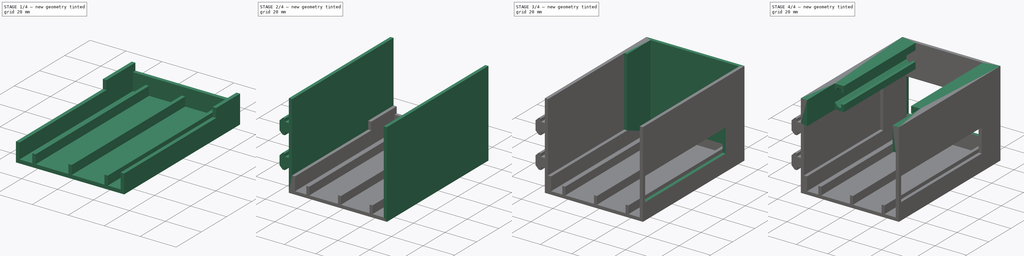
[diagram: build sequence overview — one tinted view per stage of 4, left to right]
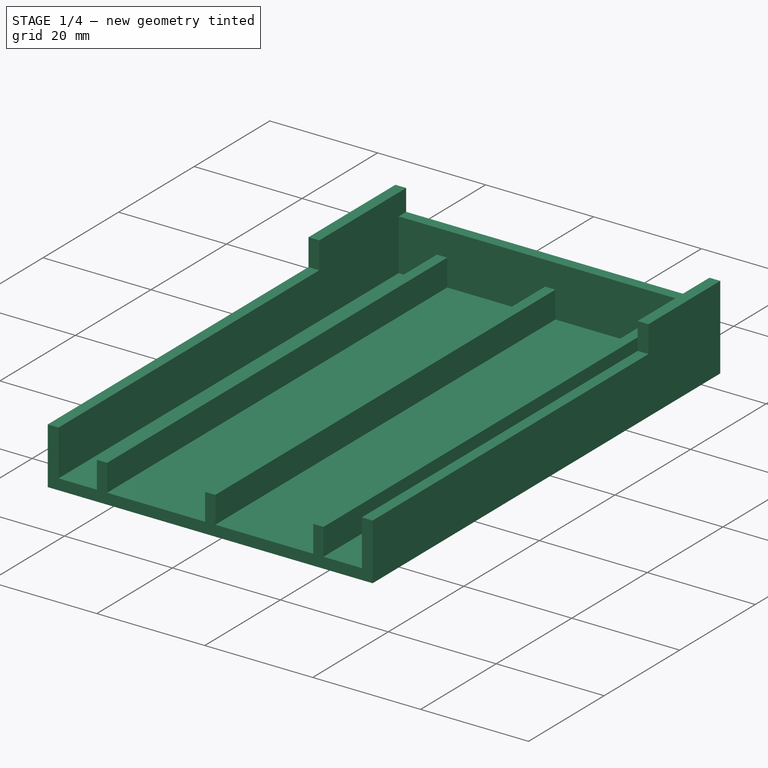
[diagram: stage 1 of 4 — iso view after this stage's code; geometry added in this stage tinted green]
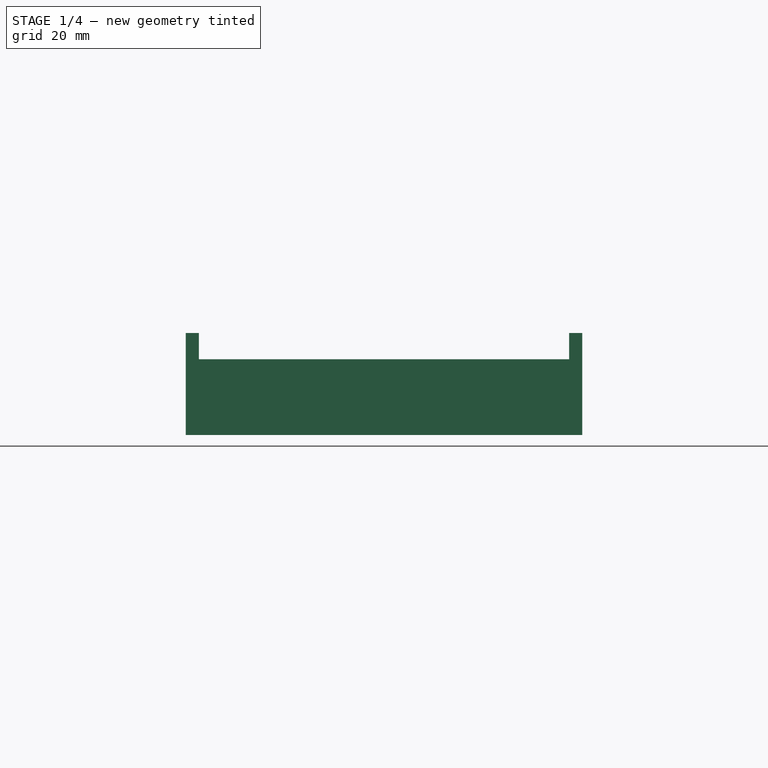
[diagram: stage 1 of 4 — front view after this stage's code; geometry added in this stage tinted green]
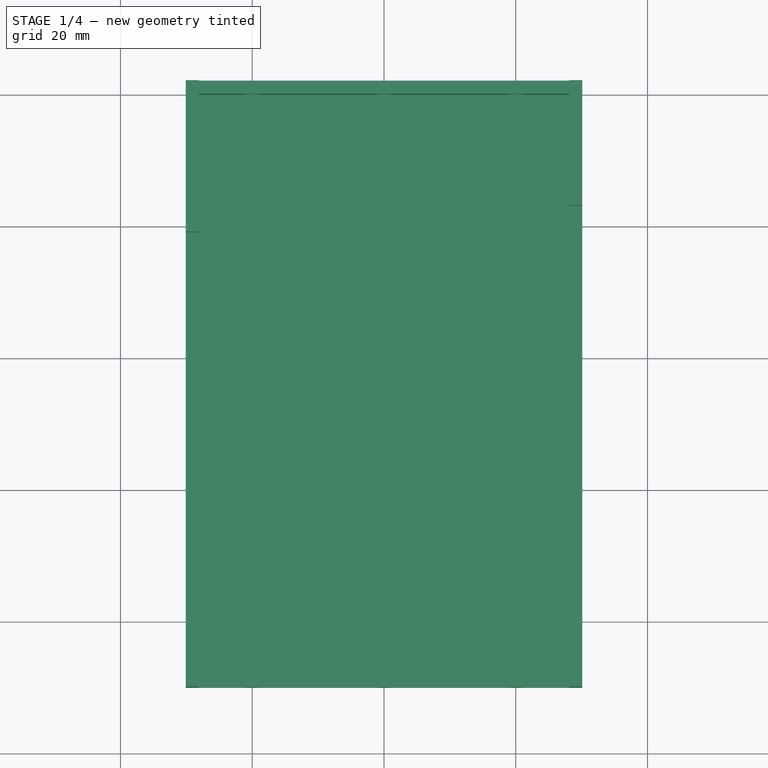
[diagram: stage 1 of 4 — top view after this stage's code; geometry added in this stage tinted green]
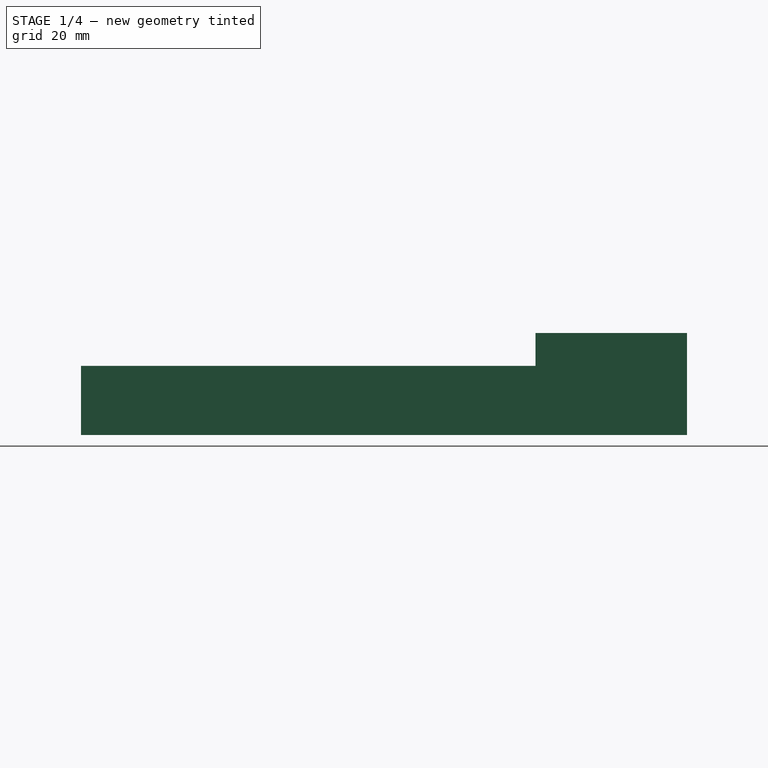
[diagram: stage 1 of 4 — right view after this stage's code; geometry added in this stage tinted green]
FCSTD DOCUMENT  (FreeCAD 1.0R39109 (Git))
Label: 01 Base plate v2
License: All rights reserved
LicenseURL: https://en.wikipedia.org/wiki/All_rights_reserved
objects: Sketcher::SketchObject×14, PartDesign::Pad×11, PartDesign::Pocket×3, PartDesign::Body×1
note: 71 computed .brp shape members not serialized (recipe doc carries the construction recipe); baked Part::Feature solids carry a one-line shape summary decoded from their .brp

FEATURE [Sketcher::SketchObject] Sketch
  ArcFitTolerance = 1e-06
  AttachmentSupport = -> [XZ_Plane]
  FullyConstrained = true
  MakeInternals = false
  MapMode = 5
  Placement = pos=(0,0,0) rot=(1,0,0;1.5708rad)
  sketch-geometry (20):
    g0: LineSegment StartX=-30.1 StartY=0 StartZ=0 EndX=30.1 EndY=0 EndZ=0
    g1: LineSegment StartX=-30.1 StartY=0 StartZ=0 EndX=-30.1 EndY=15.5 EndZ=0
    g2: LineSegment StartX=30.1 StartY=0 StartZ=0 EndX=30.1 EndY=15.5 EndZ=0
    g3: LineSegment StartX=-30.1 StartY=15.5 StartZ=0 EndX=-28.1 EndY=15.5 EndZ=0
    g4: LineSegment StartX=-28.1 StartY=15.5 StartZ=0 EndX=-28.1 EndY=2 EndZ=0
    g5: LineSegment StartX=30.1 StartY=15.5 StartZ=0 EndX=28.1 EndY=15.5 EndZ=0
    g6: LineSegment StartX=28.1 StartY=15.5 StartZ=0 EndX=28.1 EndY=2 EndZ=0
    g7: LineSegment StartX=-28.1 StartY=2 StartZ=0 EndX=28.1 EndY=2 EndZ=0
    g8: LineSegment StartX=-0.95 StartY=2 StartZ=0 EndX=-0.95 EndY=7 EndZ=0
    g9: LineSegment StartX=0.95 StartY=7 StartZ=0 EndX=0.95 EndY=2 EndZ=0
    g10: LineSegment StartX=-0.95 StartY=7 StartZ=0 EndX=0.95 EndY=7 EndZ=0
    g11: LineSegment StartX=-0.95 StartY=2 StartZ=0 EndX=0.95 EndY=2 EndZ=0
    g12: LineSegment StartX=-21 StartY=2 StartZ=0 EndX=-21 EndY=7 EndZ=0
    g13: LineSegment StartX=-21 StartY=7 StartZ=0 EndX=-19.1 EndY=7 EndZ=0
    g14: LineSegment StartX=-19.1 StartY=7 StartZ=0 EndX=-19.1 EndY=2 EndZ=0
    g15: LineSegment StartX=-19.1 StartY=2 StartZ=0 EndX=-21 EndY=2 EndZ=0
    g16: LineSegment StartX=21 StartY=2 StartZ=0 EndX=21 EndY=7 EndZ=0
    g17: LineSegment StartX=21 StartY=7 StartZ=0 EndX=19.1 EndY=7 EndZ=0
    g18: LineSegment StartX=19.1 StartY=7 StartZ=0 EndX=19.1 EndY=2 EndZ=0
    g19: LineSegment StartX=19.1 StartY=2 StartZ=0 EndX=21 EndY=2 EndZ=0
  constraints (60):
    c: Distance(g0) = 60.2
    c: Horizontal(g0)
    c: DistanceY(g-1,g0) = 0
    c: DistanceX(g0,g-1) = 30.1
    c: Distance(g1) = 15.5
    c: Coincident(g1,g0)
    c: Vertical(g1)
    c: Distance(g2) = 15.5
    c: Coincident(g2,g0)
    c: Vertical(g2)
    c: Distance(g3) = 2
    c: Coincident(g3,g1)
    c: Horizontal(g3)
    c: Distance(g4) = 13.5
    c: Coincident(g4,g3)
    c: Vertical(g4)
    c: Distance(g5) = 2
    c: Coincident(g5,g2)
    c: Horizontal(g5)
    c: Distance(g6) = 13.5
    c: Coincident(g6,g5)
    c: Vertical(g6)
    c: Coincident(g7,g4)
    c: Coincident(g7,g6)
    c: Distance(g8) = 5
    c: Vertical(g8)
    c: Distance(g9) = 5
    c: Vertical(g9)
    c: DistanceX(g8,g9) = 1.9
    c: Coincident(g10,g8)
    c: Coincident(g10,g9)
    c: Horizontal(g10)
    c: DistanceY(g-1,g8) = 2
    c: DistanceX(g8,g-1) = 0.95
    c: Coincident(g11,g8)
    c: Coincident(g11,g9)
    c: Distance(g12) = 5
    c: Vertical(g12)
    c: PointOnObject(g12,g7)
    c: DistanceX(g4,g12) = 7.1
    c: Distance(g13) = 1.9
    c: Coincident(g13,g12)
    c: Horizontal(g13)
    c: Coincident(g14,g13)
    c: PointOnObject(g14,g7)
    c: Vertical(g14)
    c: Coincident(g15,g14)
    c: Coincident(g15,g12)
    c: Distance(g16) = 5
    c: Vertical(g16)
    c: PointOnObject(g16,g7)
    c: DistanceX(g16,g6) = 7.1
    c: Distance(g17) = 1.9
    c: Coincident(g17,g16)
    c: Horizontal(g17)
    c: Coincident(g18,g17)
    c: PointOnObject(g18,g7)
    c: Vertical(g18)
    c: Coincident(g19,g18)
    c: Coincident(g19,g16)
FEATURE [PartDesign::Pad] Pad
  Direction = (0,-1,2e-16)
  Length = 90
  Length2 = 10
  Placement = pos=(0,0,0) rot=(1,0,0;1.5708rad)
  Profile = -> Sketch
  ReferenceAxis = -> Sketch [N_Axis]
  Refine = true
  Suppressed = false
  Type = 0
FEATURE [Sketcher::SketchObject] Sketch001
  ArcFitTolerance = 1e-06
  AttachmentSupport = -> [Pad]
  FullyConstrained = true
  MakeInternals = false
  MapMode = 5
  Placement = pos=(0,6.8e-15,15.5) rot=(0,0,1;3.14159rad)
  sketch-geometry (8):
    g0: LineSegment StartX=28.1 StartY=21 StartZ=0 EndX=30.1 EndY=21 EndZ=0
    g1: LineSegment StartX=30.1 StartY=21 StartZ=0 EndX=30.1 EndY=90 EndZ=0
    g2: LineSegment StartX=30.1 StartY=90 StartZ=0 EndX=28.1 EndY=90 EndZ=0
    g3: LineSegment StartX=28.1 StartY=90 StartZ=0 EndX=28.1 EndY=21 EndZ=0
    g4: LineSegment StartX=-30.1 StartY=17 StartZ=0 EndX=-28.1 EndY=17 EndZ=0
    g5: LineSegment StartX=-28.1 StartY=17 StartZ=0 EndX=-28.1 EndY=90 EndZ=0
    g6: LineSegment StartX=-28.1 StartY=90 StartZ=0 EndX=-30.1 EndY=90 EndZ=0
    g7: LineSegment StartX=-30.1 StartY=90 StartZ=0 EndX=-30.1 EndY=17 EndZ=0
  constraints (24):
    c: Coincident(g0,g1)
    c: Coincident(g1,g2)
    c: Coincident(g2,g3)
    c: Coincident(g3,g0)
    c: Horizontal(g0)
    c: Horizontal(g2)
    c: Vertical(g1)
    c: Vertical(g3)
    c: Distance(g1,g3) = 2
    c: Distance(g0,g2) = 69
    c: DistanceX(g-1,g0) = 28.1
    c: DistanceY(g-1,g0) = 21
    c: Coincident(g4,g5)
    c: Coincident(g5,g6)
    c: Coincident(g6,g7)
    c: Coincident(g7,g4)
    c: Horizontal(g4)
    c: Horizontal(g6)
    c: Vertical(g5)
    c: Vertical(g7)
    c: Distance(g5,g7) = 2
    c: Distance(g4,g6) = 73
    c: DistanceY(g-1,g4) = 17
    c: DistanceX(g4,g-1) = 28.1
FEATURE [PartDesign::Pocket] Pocket
  BaseFeature = -> Pad
  Direction = (0,0,-1)
  Length = 5
  Length2 = 5
  Placement = pos=(0,0,0) rot=(1,0,0;1.5708rad)
  Profile = -> Sketch001
  ReferenceAxis = -> Sketch001 [N_Axis]
  Refine = true
  Suppressed = false
  Type = 0
FEATURE [Sketcher::SketchObject] Sketch002
  ArcFitTolerance = 1e-06
  AttachmentSupport = -> [Pocket]
  FullyConstrained = true
  MakeInternals = false
  MapMode = 5
  Placement = pos=(0,0,0) rot=(-1,0,0;1.5708rad)
  sketch-geometry (4):
    g0: LineSegment StartX=-30.1 StartY=0 StartZ=0 EndX=-30.1 EndY=-11.5 EndZ=0
    g1: LineSegment StartX=-30.1 StartY=-11.5 StartZ=0 EndX=30.1 EndY=-11.5 EndZ=0
    g2: LineSegment StartX=30.1 StartY=-11.5 StartZ=0 EndX=30.1 EndY=0 EndZ=0
    g3: LineSegment StartX=30.1 StartY=0 StartZ=0 EndX=-30.1 EndY=0 EndZ=0
  constraints (12):
    c: Coincident(g0,g1)
    c: Coincident(g1,g2)
    c: Coincident(g2,g3)
    c: Coincident(g3,g0)
    c: Vertical(g0)
    c: Vertical(g2)
    c: Horizontal(g1)
    c: Horizontal(g3)
    c: Distance(g0,g2) = 60.2
    c: Distance(g1,g3) = 11.5
    c: DistanceX(g0,g-1) = 30.1
    c: DistanceY(g0,g-1) = 0
FEATURE [PartDesign::Pad] Pad001
  BaseFeature = -> Pocket
  Direction = (0,1,2e-16)
  Length = 2
  Length2 = 10
  Placement = pos=(0,0,0) rot=(1,0,0;1.5708rad)
  Profile = -> Sketch002
  ReferenceAxis = -> Sketch002 [N_Axis]
  Refine = true
  Suppressed = false
  Type = 0
FEATURE [Sketcher::SketchObject] Sketch004
  ArcFitTolerance = 1e-06
  FullyConstrained = true
  MakeInternals = false
  MapMode = 5
  Placement = pos=(0,0,11.5) rot=(0,0,1;3.14159rad)
  sketch-geometry (8):
    g0: LineSegment StartX=-30.1 StartY=-2 StartZ=0 EndX=-28.1 EndY=-2 EndZ=0
    g1: LineSegment StartX=-28.1 StartY=-2 StartZ=0 EndX=-28.1 EndY=0 EndZ=0
    g2: LineSegment StartX=-28.1 StartY=0 StartZ=0 EndX=-30.1 EndY=0 EndZ=0
    g3: LineSegment StartX=-30.1 StartY=0 StartZ=0 EndX=-30.1 EndY=-2 EndZ=0
    g4: LineSegment StartX=28.1 StartY=0 StartZ=0 EndX=28.1 EndY=-2 EndZ=0
    g5: LineSegment StartX=28.1 StartY=-2 StartZ=0 EndX=30.1 EndY=-2 EndZ=0
    g6: LineSegment StartX=30.1 StartY=-2 StartZ=0 EndX=30.1 EndY=0 EndZ=0
    g7: LineSegment StartX=30.1 StartY=0 StartZ=0 EndX=28.1 EndY=0 EndZ=0
  constraints (24):
    c: Coincident(g0,g1)
    c: Coincident(g1,g2)
    c: Coincident(g2,g3)
    c: Coincident(g3,g0)
    c: Horizontal(g0)
    c: Horizontal(g2)
    c: Vertical(g1)
    c: Vertical(g3)
    c: Distance(g1,g3) = 2
    c: Distance(g0,g2) = 2
    c: DistanceX(g0,g-1) = 30.1
    c: DistanceY(g2,g-1) = 0
    c: Coincident(g4,g5)
    c: Coincident(g5,g6)
    c: Coincident(g6,g7)
    c: Coincident(g7,g4)
    c: Vertical(g4)
    c: Vertical(g6)
    c: Horizontal(g5)
    c: Horizontal(g7)
    c: Distance(g4,g6) = 2
    c: Distance(g5,g7) = 2
    c: DistanceX(g-1,g5) = 30.1
    c: DistanceY(g6,g-1) = 0
FEATURE [PartDesign::Pad] Pad002
  BaseFeature = -> Pad001
  Direction = (0,0,1)
  Length = 4
  Length2 = 10
  Placement = pos=(0,0,0) rot=(1,0,0;1.5708rad)
  Profile = -> Sketch004
  ReferenceAxis = -> Sketch004 [N_Axis]
  Refine = true
  Suppressed = false
  Type = 0
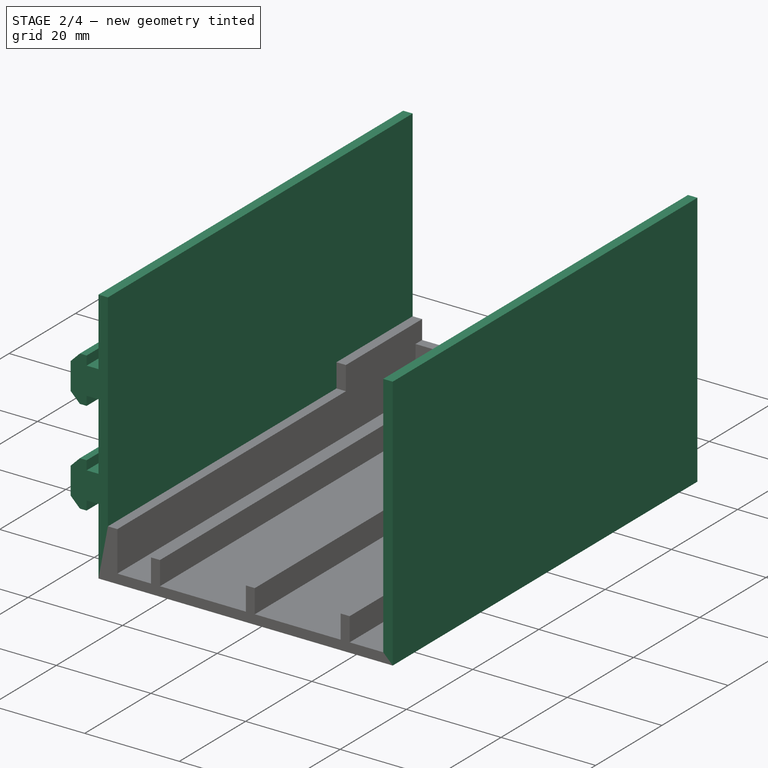
[diagram: stage 2 of 4 — iso view after this stage's code; geometry added in this stage tinted green]
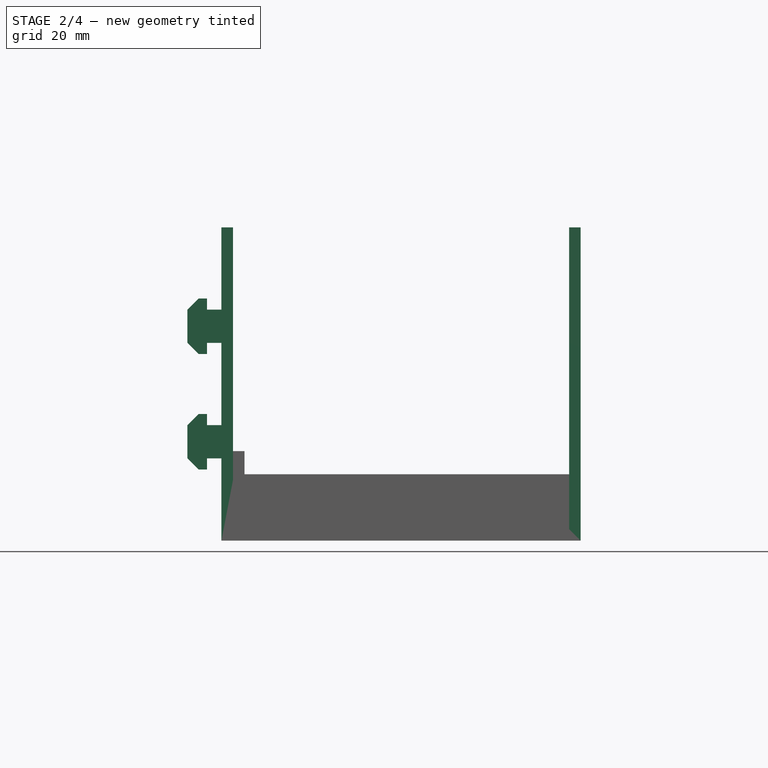
[diagram: stage 2 of 4 — front view after this stage's code; geometry added in this stage tinted green]
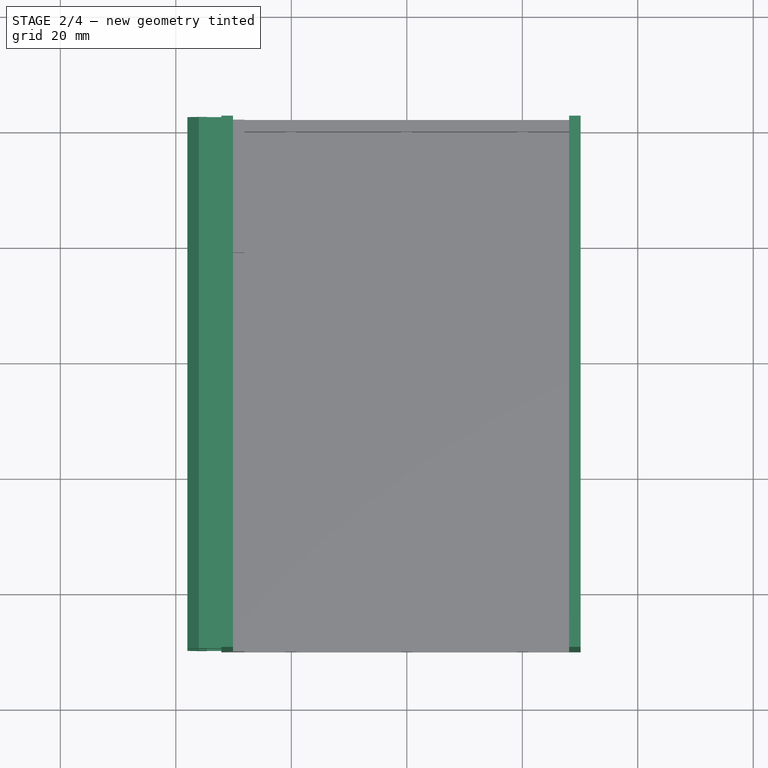
[diagram: stage 2 of 4 — top view after this stage's code; geometry added in this stage tinted green]
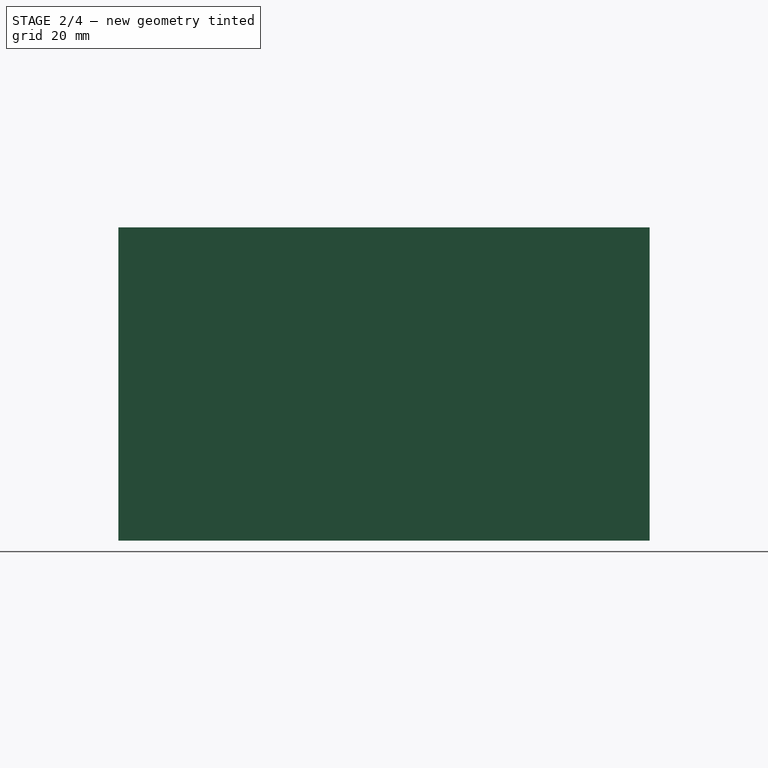
[diagram: stage 2 of 4 — right view after this stage's code; geometry added in this stage tinted green]
FEATURE [Sketcher::SketchObject] Sketch005
  ArcFitTolerance = 1e-06
  AttachmentSupport = -> [Pad002]
  FullyConstrained = true
  MakeInternals = false
  MapMode = 5
  Placement = pos=(0,2,-5e-16) rot=(-1,0,0;1.5708rad)
  sketch-geometry (24):
    g0: LineSegment StartX=-30.1 StartY=-54.24 StartZ=0 EndX=-30.1 EndY=0 EndZ=0
    g1: LineSegment StartX=-30.1 StartY=0 StartZ=0 EndX=-32.1 EndY=0 EndZ=0
    g2: LineSegment StartX=-32.1 StartY=0 StartZ=0 EndX=-32.1 EndY=-14.24 EndZ=0
    g3: LineSegment StartX=-32.1 StartY=-14.24 StartZ=0 EndX=-34.6 EndY=-14.24 EndZ=0
    g4: LineSegment StartX=-34.6 StartY=-14.24 StartZ=0 EndX=-34.6 EndY=-12.31 EndZ=0
    g5: LineSegment StartX=-34.6 StartY=-12.31 StartZ=0 EndX=-36.03 EndY=-12.31 EndZ=0
    g6: LineSegment StartX=-36.03 StartY=-12.31 StartZ=0 EndX=-37.9958 EndY=-14.2758 EndZ=0
    g7: LineSegment StartX=-37.9958 StartY=-14.2758 StartZ=0 EndX=-37.9958 EndY=-19.9658 EndZ=0
    g8: LineSegment StartX=-37.9958 StartY=-19.9658 StartZ=0 EndX=-36.03 EndY=-21.9315 EndZ=0
    g9: LineSegment StartX=-36.03 StartY=-21.9315 StartZ=0 EndX=-34.6 EndY=-21.9315 EndZ=0
    g10: LineSegment StartX=-34.6 StartY=-21.9315 StartZ=0 EndX=-34.6 EndY=-20 EndZ=0
    g11: LineSegment StartX=-34.6 StartY=-20 StartZ=0 EndX=-32.1 EndY=-20 EndZ=0
    g12: LineSegment StartX=-32.1 StartY=-20 StartZ=0 EndX=-32.1 EndY=-34.24 EndZ=0
    g13: LineSegment StartX=-32.1 StartY=-34.24 StartZ=0 EndX=-34.6 EndY=-34.24 EndZ=0
    g14: LineSegment StartX=-34.6 StartY=-34.24 StartZ=0 EndX=-34.6 EndY=-32.31 EndZ=0
    g15: LineSegment StartX=-34.6 StartY=-32.31 StartZ=0 EndX=-36.03 EndY=-32.31 EndZ=0
    g16: LineSegment StartX=-36.03 StartY=-32.31 StartZ=0 EndX=-37.9958 EndY=-34.2758 EndZ=0
    g17: LineSegment StartX=-37.9958 StartY=-34.2758 StartZ=0 EndX=-37.9958 EndY=-39.9658 EndZ=0
    g18: LineSegment StartX=-37.9958 StartY=-39.9658 StartZ=0 EndX=-36.03 EndY=-41.9315 EndZ=0
    g19: LineSegment StartX=-36.03 StartY=-41.9315 StartZ=0 EndX=-34.6 EndY=-41.9315 EndZ=0
    g20: LineSegment StartX=-34.6 StartY=-41.9315 StartZ=0 EndX=-34.6 EndY=-40.0015 EndZ=0
    g21: LineSegment StartX=-34.6 StartY=-40.0015 StartZ=0 EndX=-32.1 EndY=-40.0015 EndZ=0
    g22: LineSegment StartX=-32.1 StartY=-40.0015 StartZ=0 EndX=-32.1 EndY=-54.24 EndZ=0
    g23: LineSegment StartX=-32.1 StartY=-54.24 StartZ=0 EndX=-30.1 EndY=-54.24 EndZ=0
  constraints (72):
    c: Vertical(g0)
    c: Coincident(g0,g1)
    c: Horizontal(g1)
    c: Coincident(g1,g2)
    c: Vertical(g2)
    c: Coincident(g2,g3)
    c: Horizontal(g3)
    c: Coincident(g3,g4)
    c: Vertical(g4)
    c: Coincident(g4,g5)
    c: Horizontal(g5)
    c: Coincident(g5,g6)
    c: Coincident(g6,g7)
    c: Vertical(g7)
    c: Coincident(g7,g8)
    c: Coincident(g8,g9)
    c: Coincident(g9,g10)
    c: Vertical(g10)
    c: Coincident(g10,g11)
    c: Coincident(g11,g12)
    c: Vertical(g12)
    c: Coincident(g12,g13)
    c: Horizontal(g13)
    c: Coincident(g13,g14)
    c: Coincident(g14,g15)
    c: Horizontal(g15)
    c: Coincident(g15,g16)
    c: Coincident(g16,g17)
    c: Coincident(g17,g18)
    c: Coincident(g18,g19)
    c: Coincident(g19,g20)
    c: Vertical(g20)
    c: Coincident(g20,g21)
    c: Coincident(g21,g22)
    c: Vertical(g22)
    c: Coincident(g22,g23)
    c: Coincident(g23,g0)
    c: Horizontal(g23)
    c: Vertical(g17)
    c: Horizontal(g21)
    c: Horizontal(g19)
    c: Horizontal(g9)
    c: Horizontal(g11)
    c: Distance(g0) = 54.24
    c: Distance(g1) = 2
    c: Distance(g2) = 14.24
    c: Distance(g3) = 2.5
    c: Distance(g4) = 1.93
    c: Distance(g5) = 1.43
    c: Distance(g6) = 2.78
    c: Distance(g7) = 5.69
    c: Distance(g8) = 2.78
    c: Distance(g9) = 1.43
    c: Distance(g11) = 2.5
    c: Angle(g6,g-1) = 2.35619
    c: DistanceY(g11,g2) = 5.76
    c: Distance(g12) = 14.24
    c: Distance(g13) = 2.5
    c: Vertical(g14)
    c: Distance(g14) = 1.93
    c: Distance(g15) = 1.43
    c: Distance(g16) = 2.78
    c: Distance(g17) = 5.69
    c: Distance(g18) = 2.78
    c: Distance(g19) = 1.43
    c: Distance(g20) = 1.93
    c: Distance(g21) = 2.5
    c: Distance(g23) = 2
    c: Angle(g16,g-1) = 2.35619
    c: Angle(g8,g7) = 2.35619
    c: DistanceY(g0,g-1) = 0
    c: DistanceX(g0,g-1) = 30.1
FEATURE [PartDesign::Pad] Pad003
  BaseFeature = -> Pad002
  Direction = (0,1,2e-16)
  Length = 92
  Length2 = 10
  Placement = pos=(0,0,0) rot=(1,0,0;1.5708rad)
  Profile = -> Sketch005
  ReferenceAxis = -> Sketch005 [N_Axis]
  Refine = true
  Reversed = true
  Suppressed = false
  Type = 0
FEATURE [Sketcher::SketchObject] Sketch006
  ArcFitTolerance = 1e-06
  AttachmentSupport = -> [Pad003]
  FullyConstrained = true
  MakeInternals = false
  MapMode = 5
  Placement = pos=(0,0,10.5) rot=(0,0,1;3.14159rad)
  sketch-geometry (4):
    g0: LineSegment StartX=-30.1 StartY=90 StartZ=0 EndX=-30.1 EndY=17 EndZ=0
    g1: LineSegment StartX=-30.1 StartY=17 StartZ=0 EndX=-28.1 EndY=17 EndZ=0
    g2: LineSegment StartX=-28.1 StartY=17 StartZ=0 EndX=-28.1 EndY=90 EndZ=0
    g3: LineSegment StartX=-28.1 StartY=90 StartZ=0 EndX=-30.1 EndY=90 EndZ=0
  constraints (12):
    c: Coincident(g0,g1)
    c: Coincident(g1,g2)
    c: Coincident(g2,g3)
    c: Coincident(g3,g0)
    c: Vertical(g0)
    c: Vertical(g2)
    c: Horizontal(g1)
    c: Horizontal(g3)
    c: Distance(g0,g2) = 2
    c: Distance(g1,g3) = 73
    c: DistanceY(g-1,g1) = 17
    c: DistanceX(g1,g-1) = 28.1
FEATURE [PartDesign::Pad] Pad004
  BaseFeature = -> Pad003
  Direction = (0,0,1)
  Length = 5
  Length2 = 10
  Placement = pos=(0,0,0) rot=(1,0,0;1.5708rad)
  Profile = -> Sketch006
  ReferenceAxis = -> Sketch006 [N_Axis]
  Refine = true
  Suppressed = false
  Type = 0
FEATURE [Sketcher::SketchObject] Sketch007
  ArcFitTolerance = 1e-06
  AttachmentSupport = -> [Pad004]
  FullyConstrained = true
  MakeInternals = false
  MapMode = 5
  Placement = pos=(-4.2e-15,0,15.5) rot=(0,0,1;3.14159rad)
  sketch-geometry (4):
    g0: LineSegment StartX=-30.1 StartY=-2 StartZ=0 EndX=-28.1 EndY=-2 EndZ=0
    g1: LineSegment StartX=-28.1 StartY=-2 StartZ=0 EndX=-28.1 EndY=90 EndZ=0
    g2: LineSegment StartX=-28.1 StartY=90 StartZ=0 EndX=-30.1 EndY=90 EndZ=0
    g3: LineSegment StartX=-30.1 StartY=90 StartZ=0 EndX=-30.1 EndY=-2 EndZ=0
  constraints (12):
    c: Coincident(g0,g1)
    c: Coincident(g1,g2)
    c: Coincident(g2,g3)
    c: Coincident(g3,g0)
    c: Horizontal(g0)
    c: Horizontal(g2)
    c: Vertical(g1)
    c: Vertical(g3)
    c: Distance(g1,g3) = 2
    c: Distance(g0,g2) = 92
    c: DistanceY(g0,g-1) = 2
    c: DistanceX(g0,g-1) = 28.1
FEATURE [PartDesign::Pad] Pad005
  BaseFeature = -> Pad004
  Direction = (0,0,1)
  Length = 38.74
  Length2 = 10
  Placement = pos=(0,0,0) rot=(1,0,0;1.5708rad)
  Profile = -> Sketch007
  ReferenceAxis = -> Sketch007 [N_Axis]
  Refine = true
  Suppressed = false
  Type = 0
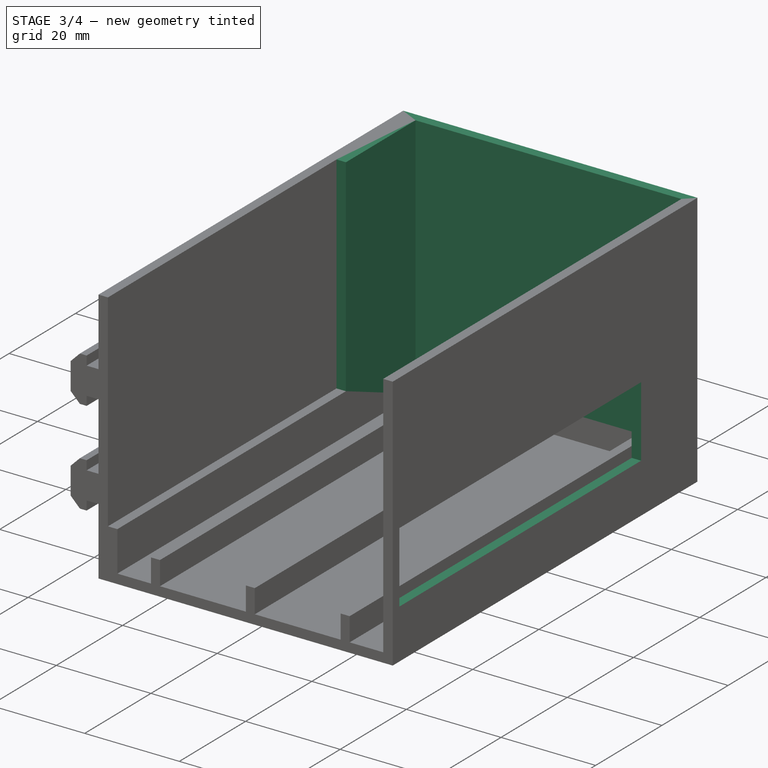
[diagram: stage 3 of 4 — iso view after this stage's code; geometry added in this stage tinted green]
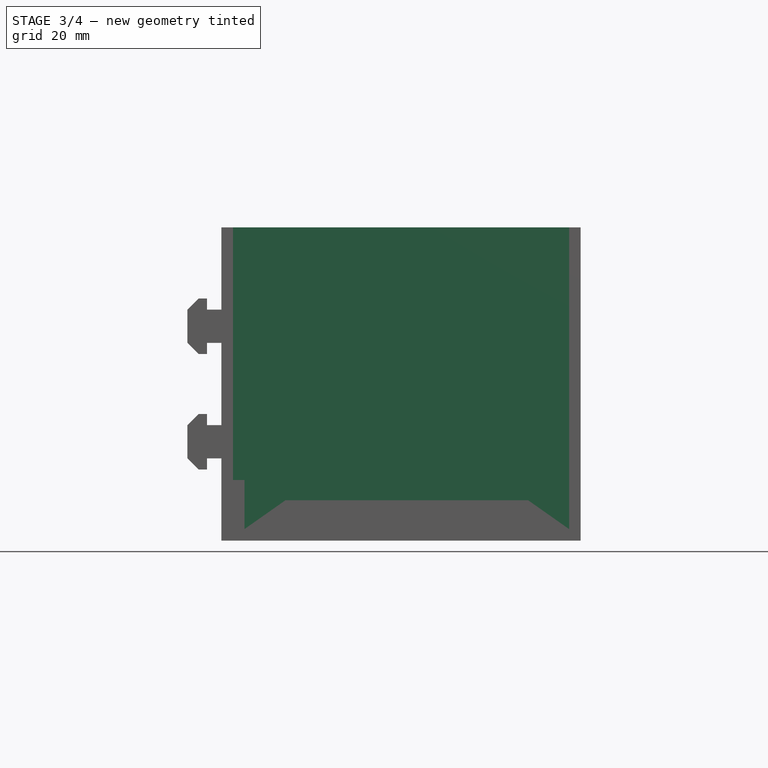
[diagram: stage 3 of 4 — front view after this stage's code; geometry added in this stage tinted green]
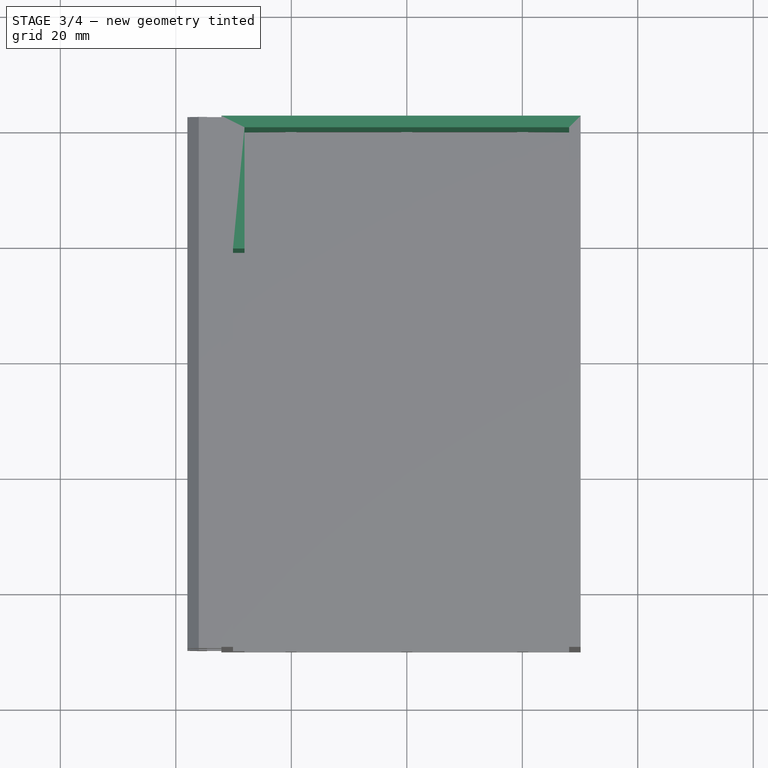
[diagram: stage 3 of 4 — top view after this stage's code; geometry added in this stage tinted green]
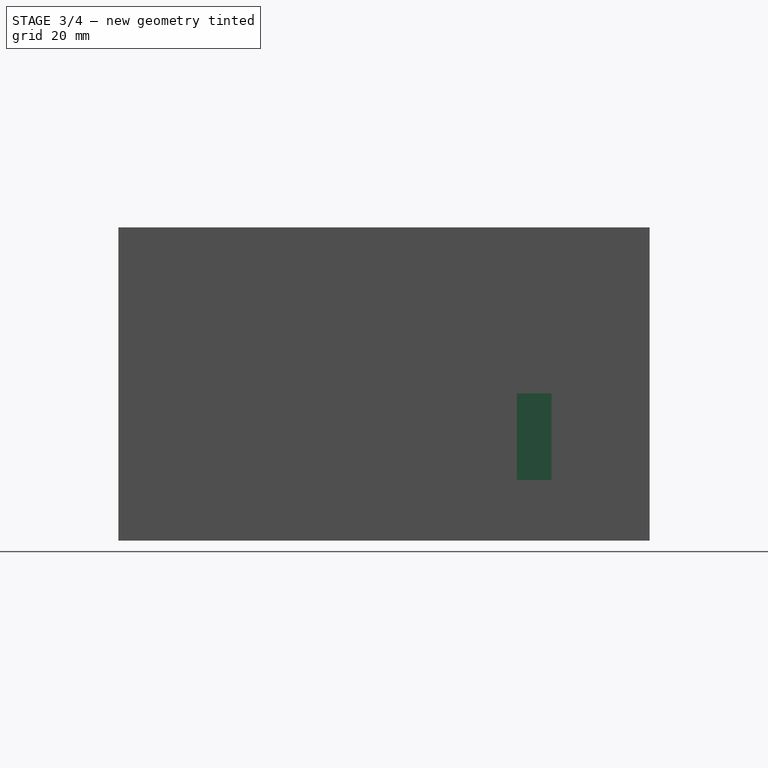
[diagram: stage 3 of 4 — right view after this stage's code; geometry added in this stage tinted green]
FEATURE [Sketcher::SketchObject] Sketch008
  ArcFitTolerance = 1e-06
  AttachmentSupport = -> [Pad005]
  FullyConstrained = true
  MakeInternals = false
  MapMode = 5
  Placement = pos=(30.1,0,0) rot=(0.707107,0,0.707107;3.14159rad)
  sketch-geometry (4):
    g0: LineSegment StartX=25.5 StartY=88 StartZ=0 EndX=10.5 EndY=88 EndZ=0
    g1: LineSegment StartX=10.5 StartY=88 StartZ=0 EndX=10.5 EndY=15 EndZ=0
    g2: LineSegment StartX=10.5 StartY=15 StartZ=0 EndX=25.5 EndY=15 EndZ=0
    g3: LineSegment StartX=25.5 StartY=15 StartZ=0 EndX=25.5 EndY=88 EndZ=0
  constraints (12):
    c: Coincident(g0,g1)
    c: Coincident(g1,g2)
    c: Coincident(g2,g3)
    c: Coincident(g3,g0)
    c: Horizontal(g0)
    c: Horizontal(g2)
    c: Vertical(g1)
    c: Vertical(g3)
    c: Distance(g1,g3) = 15
    c: Distance(g0,g2) = 73
    c: DistanceY(g-1,g0) = 88
    c: DistanceX(g-1,g1) = 10.5
FEATURE [PartDesign::Pocket] Pocket001
  BaseFeature = -> Pad005
  Direction = (-1,0,2e-16)
  Length = 2
  Length2 = 5
  Placement = pos=(0,0,0) rot=(1,0,0;1.5708rad)
  Profile = -> Sketch008
  ReferenceAxis = -> Sketch008 [N_Axis]
  Refine = true
  Suppressed = false
  Type = 0
FEATURE [Sketcher::SketchObject] Sketch009
  ArcFitTolerance = 1e-06
  AttachmentSupport = -> [Pocket001]
  FullyConstrained = true
  MakeInternals = false
  MapMode = 5
  Placement = pos=(0,9.8e-15,15.5) rot=(0,0,1;3.14159rad)
  sketch-geometry (4):
    g0: LineSegment StartX=28.1 StartY=-2 StartZ=0 EndX=30.1 EndY=-2 EndZ=0
    g1: LineSegment StartX=30.1 StartY=-2 StartZ=0 EndX=30.1 EndY=21 EndZ=0
    g2: LineSegment StartX=30.1 StartY=21 StartZ=0 EndX=28.1 EndY=21 EndZ=0
    g3: LineSegment StartX=28.1 StartY=21 StartZ=0 EndX=28.1 EndY=-2 EndZ=0
  constraints (12):
    c: Coincident(g0,g1)
    c: Coincident(g1,g2)
    c: Coincident(g2,g3)
    c: Coincident(g3,g0)
    c: Horizontal(g0)
    c: Horizontal(g2)
    c: Vertical(g1)
    c: Vertical(g3)
    c: Distance(g1,g3) = 2
    c: Distance(g0,g2) = 23
    c: DistanceY(g0,g-1) = 2
    c: DistanceX(g-1,g0) = 30.1
FEATURE [PartDesign::Pad] Pad006
  BaseFeature = -> Pocket001
  Direction = (0,0,1)
  Length = 38.74
  Length2 = 10
  Placement = pos=(0,0,0) rot=(1,0,0;1.5708rad)
  Profile = -> Sketch009
  ReferenceAxis = -> Sketch009 [N_Axis]
  Refine = true
  Suppressed = false
  Type = 0
FEATURE [Sketcher::SketchObject] Sketch010
  ArcFitTolerance = 1e-06
  AttachmentSupport = -> [Pad006]
  FullyConstrained = true
  MakeInternals = false
  MapMode = 5
  Placement = pos=(0,0,11.5) rot=(0,0,1;3.14159rad)
  sketch-geometry (4):
    g0: LineSegment StartX=-28.1 StartY=0 StartZ=0 EndX=-28.1 EndY=-2 EndZ=0
    g1: LineSegment StartX=-28.1 StartY=-2 StartZ=0 EndX=28.1 EndY=-2 EndZ=0
    g2: LineSegment StartX=28.1 StartY=-2 StartZ=0 EndX=28.1 EndY=0 EndZ=0
    g3: LineSegment StartX=28.1 StartY=0 StartZ=0 EndX=-28.1 EndY=0 EndZ=0
  constraints (12):
    c: Coincident(g0,g1)
    c: Coincident(g1,g2)
    c: Coincident(g2,g3)
    c: Coincident(g3,g0)
    c: Vertical(g0)
    c: Vertical(g2)
    c: Horizontal(g1)
    c: Horizontal(g3)
    c: Distance(g0,g2) = 56.2
    c: Distance(g1,g3) = 2
    c: DistanceX(g0,g-1) = 28.1
    c: DistanceY(g0,g-1) = 0
FEATURE [PartDesign::Pad] Pad007
  BaseFeature = -> Pad006
  Direction = (0,0,1)
  Length = 42.74
  Length2 = 10
  Placement = pos=(0,0,0) rot=(1,0,0;1.5708rad)
  Profile = -> Sketch010
  ReferenceAxis = -> Sketch010 [N_Axis]
  Refine = true
  Suppressed = false
  Type = 0
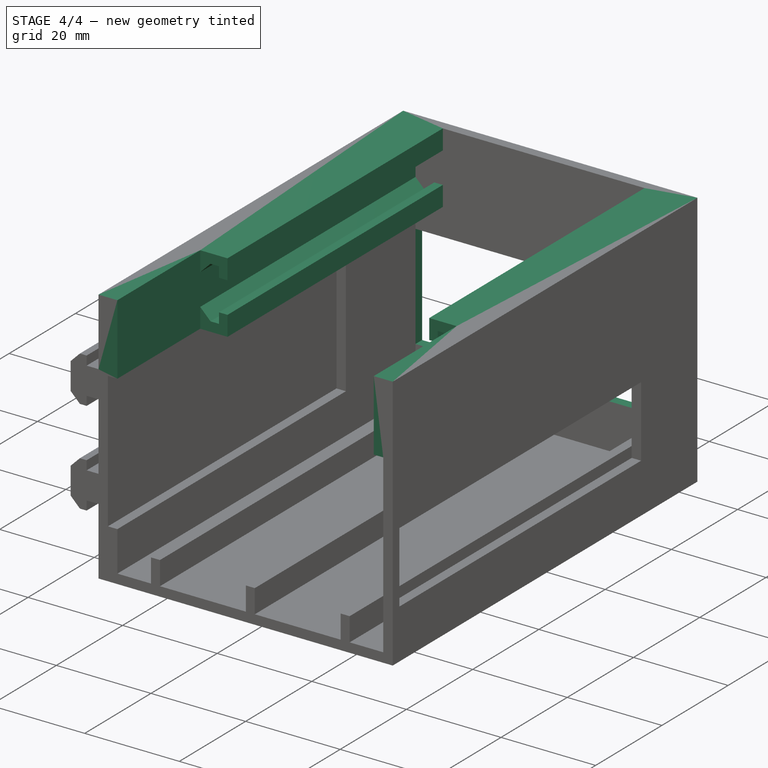
[diagram: stage 4 of 4 — iso view after this stage's code; geometry added in this stage tinted green]
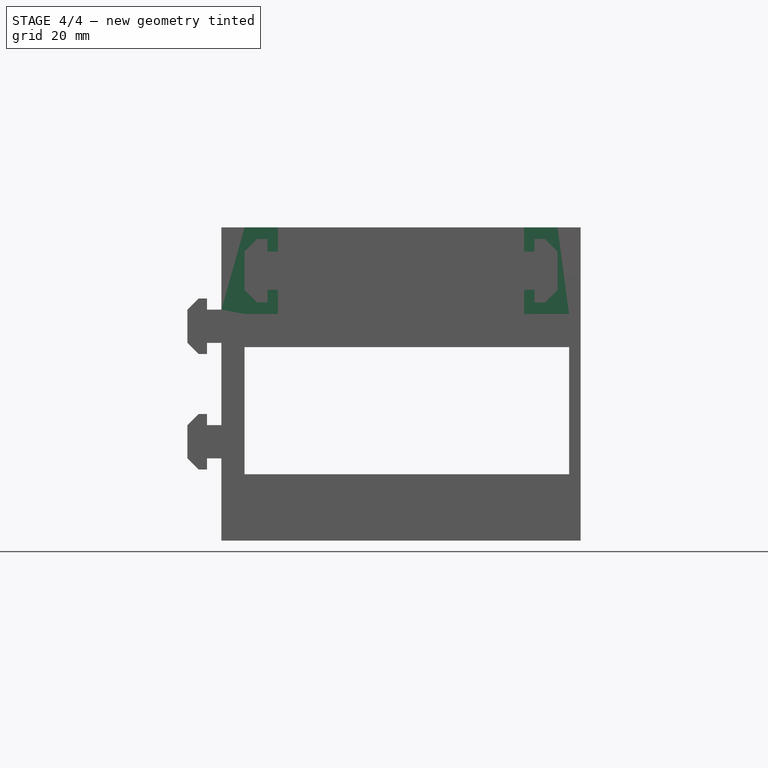
[diagram: stage 4 of 4 — front view after this stage's code; geometry added in this stage tinted green]
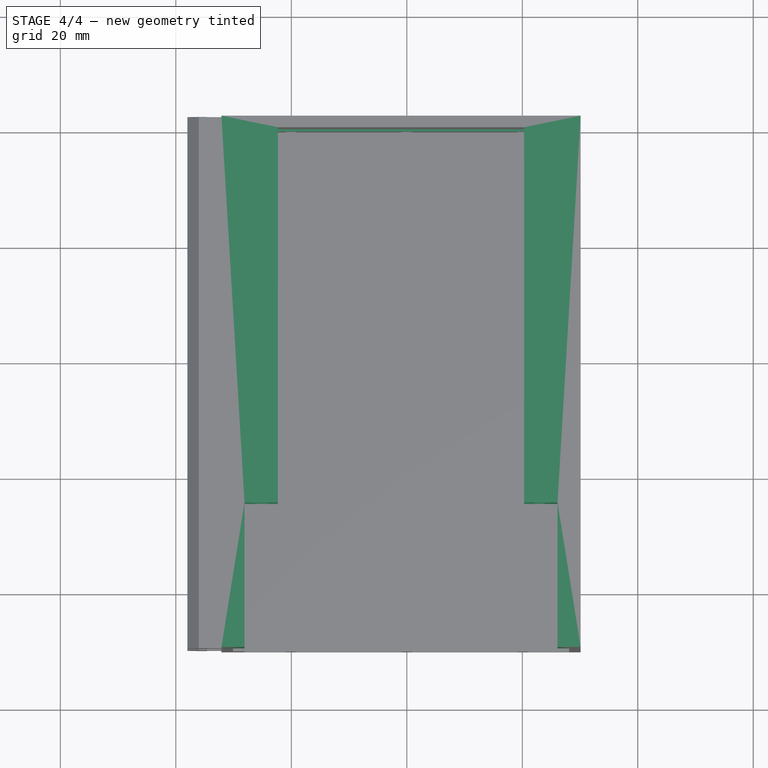
[diagram: stage 4 of 4 — top view after this stage's code; geometry added in this stage tinted green]
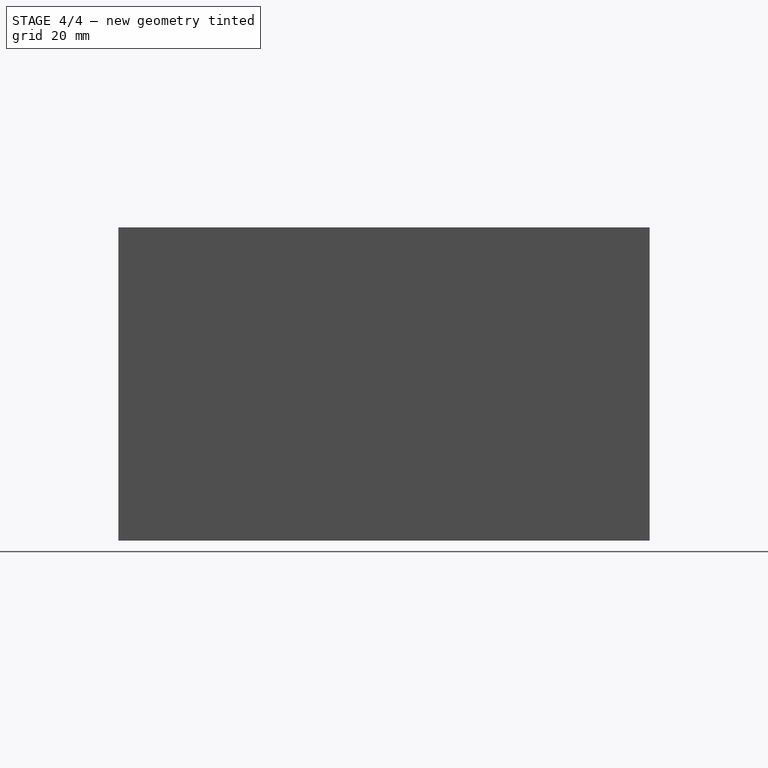
[diagram: stage 4 of 4 — right view after this stage's code; geometry added in this stage tinted green]
FEATURE [Sketcher::SketchObject] Sketch011
  ArcFitTolerance = 1e-06
  AttachmentSupport = -> [Pad007]
  FullyConstrained = true
  MakeInternals = false
  MapMode = 5
  Placement = pos=(0,5.8e-15,0) rot=(1,0,0;1.5708rad)
  sketch-geometry (4):
    g0: LineSegment StartX=-28.1 StartY=33.5 StartZ=0 EndX=-28.1 EndY=11.5 EndZ=0
    g1: LineSegment StartX=-28.1 StartY=11.5 StartZ=0 EndX=28.1 EndY=11.5 EndZ=0
    g2: LineSegment StartX=28.1 StartY=11.5 StartZ=0 EndX=28.1 EndY=33.5 EndZ=0
    g3: LineSegment StartX=28.1 StartY=33.5 StartZ=0 EndX=-28.1 EndY=33.5 EndZ=0
  constraints (12):
    c: Coincident(g0,g1)
    c: Coincident(g1,g2)
    c: Coincident(g2,g3)
    c: Coincident(g3,g0)
    c: Vertical(g0)
    c: Vertical(g2)
    c: Horizontal(g1)
    c: Horizontal(g3)
    c: Distance(g0,g2) = 56.2
    c: Distance(g1,g3) = 22
    c: DistanceX(g0,g-1) = 28.1
    c: DistanceY(g-1,g0) = 11.5
FEATURE [PartDesign::Pocket] Pocket002
  BaseFeature = -> Pad007
  Direction = (0,1,-2e-16)
  Length = 2
  Length2 = 5
  Placement = pos=(0,0,0) rot=(1,0,0;1.5708rad)
  Profile = -> Sketch011
  ReferenceAxis = -> Sketch011 [N_Axis]
  Refine = true
  Suppressed = false
  Type = 0
FEATURE [Sketcher::SketchObject] Sketch012
  ArcFitTolerance = 1e-06
  AttachmentSupport = -> [Pocket002]
  FullyConstrained = true
  MakeInternals = false
  MapMode = 5
  Placement = pos=(0,-21,0) rot=(1,0,0;1.5708rad)
  sketch-geometry (4):
    g0: LineSegment StartX=-28.1 StartY=54.24 StartZ=0 EndX=-28.1 EndY=39.24 EndZ=0
    g1: LineSegment StartX=-28.1 StartY=39.24 StartZ=0 EndX=-30.1 EndY=39.24 EndZ=0
    g2: LineSegment StartX=-30.1 StartY=39.24 StartZ=0 EndX=-30.1 EndY=54.24 EndZ=0
    g3: LineSegment StartX=-30.1 StartY=54.24 StartZ=0 EndX=-28.1 EndY=54.24 EndZ=0
  constraints (12):
    c: Coincident(g0,g1)
    c: Coincident(g1,g2)
    c: Coincident(g2,g3)
    c: Coincident(g3,g0)
    c: Vertical(g0)
    c: Vertical(g2)
    c: Horizontal(g1)
    c: Horizontal(g3)
    c: Distance(g0,g2) = 2
    c: Distance(g1,g3) = 15
    c: DistanceY(g-1,g0) = 54.24
    c: DistanceX(g2,g-1) = 30.1
FEATURE [PartDesign::Pad] Pad008
  BaseFeature = -> Pocket002
  Direction = (0,-1,2e-16)
  Length = 69
  Length2 = 10
  Placement = pos=(0,0,0) rot=(1,0,0;1.5708rad)
  Profile = -> Sketch012
  ReferenceAxis = -> Sketch012 [N_Axis]
  Refine = true
  Suppressed = false
  Type = 0
FEATURE [Sketcher::SketchObject] Sketch013
  ArcFitTolerance = 1e-06
  AttachmentSupport = -> [Pad008]
  FullyConstrained = true
  MakeInternals = false
  MapMode = 5
  Placement = pos=(0,5.8e-15,0) rot=(1,0,0;1.5708rad)
  sketch-geometry (4):
    g0: LineSegment StartX=28.1 StartY=54.24 StartZ=0 EndX=28.1 EndY=39.24 EndZ=0
    g1: LineSegment StartX=28.1 StartY=39.24 StartZ=0 EndX=26.1 EndY=39.24 EndZ=0
    g2: LineSegment StartX=26.1 StartY=39.24 StartZ=0 EndX=26.1 EndY=54.24 EndZ=0
    g3: LineSegment StartX=26.1 StartY=54.24 StartZ=0 EndX=28.1 EndY=54.24 EndZ=0
  constraints (12):
    c: Coincident(g0,g1)
    c: Coincident(g1,g2)
    c: Coincident(g2,g3)
    c: Coincident(g3,g0)
    c: Vertical(g0)
    c: Vertical(g2)
    c: Horizontal(g1)
    c: Horizontal(g3)
    c: Distance(g0,g2) = 2
    c: Distance(g1,g3) = 15
    c: DistanceY(g-1,g0) = 54.24
    c: DistanceX(g-1,g0) = 28.1
FEATURE [PartDesign::Pad] Pad009
  BaseFeature = -> Pad008
  Direction = (0,-1,2e-16)
  Length = 90
  Length2 = 10
  Placement = pos=(0,0,0) rot=(1,0,0;1.5708rad)
  Profile = -> Sketch013
  ReferenceAxis = -> Sketch013 [N_Axis]
  Refine = true
  Suppressed = false
  Type = 0
FEATURE [Sketcher::SketchObject] Sketch014
  ArcFitTolerance = 1e-06
  AttachmentSupport = -> [Pad009]
  FullyConstrained = true
  MakeInternals = false
  MapMode = 5
  Placement = pos=(0,5.8e-15,0) rot=(1,0,0;1.5708rad)
  sketch-geometry (28):
    g0: LineSegment StartX=20.32 StartY=39.24 StartZ=0 EndX=20.32 EndY=43.44 EndZ=0
    g1: LineSegment StartX=20.32 StartY=43.44 StartZ=0 EndX=22.12 EndY=43.44 EndZ=0
    g2: LineSegment StartX=22.12 StartY=43.44 StartZ=0 EndX=22.12 EndY=41.24 EndZ=0
    g3: LineSegment StartX=22.12 StartY=41.24 StartZ=0 EndX=23.92 EndY=41.24 EndZ=0
    g4: LineSegment StartX=23.92 StartY=41.24 StartZ=0 EndX=26.1182 EndY=43.44 EndZ=0
    g5: LineSegment StartX=26.1182 StartY=43.44 StartZ=0 EndX=26.1182 EndY=39.24 EndZ=0
    g6: LineSegment StartX=26.1182 StartY=39.24 StartZ=0 EndX=20.32 EndY=39.24 EndZ=0
    g7: LineSegment StartX=20.32 StartY=54.24 StartZ=0 EndX=20.32 EndY=50.04 EndZ=0
    g8: LineSegment StartX=20.32 StartY=50.04 StartZ=0 EndX=22.12 EndY=50.04 EndZ=0
    g9: LineSegment StartX=22.12 StartY=50.04 StartZ=0 EndX=22.12 EndY=52.24 EndZ=0
    g10: LineSegment StartX=22.12 StartY=52.24 StartZ=0 EndX=23.92 EndY=52.24 EndZ=0
    g11: LineSegment StartX=23.92 StartY=52.24 StartZ=0 EndX=26.1182 EndY=50.04 EndZ=0
    g12: LineSegment StartX=26.1182 StartY=50.04 StartZ=0 EndX=26.1182 EndY=54.24 EndZ=0
    g13: LineSegment StartX=26.1182 StartY=54.24 StartZ=0 EndX=20.32 EndY=54.24 EndZ=0
    g14: LineSegment StartX=-22.32 StartY=43.44 StartZ=0 EndX=-22.32 EndY=39.24 EndZ=0
    g15: LineSegment StartX=-22.32 StartY=39.24 StartZ=0 EndX=-28.12 EndY=39.24 EndZ=0
    g16: LineSegment StartX=-28.12 StartY=39.24 StartZ=0 EndX=-28.12 EndY=43.4382 EndZ=0
    g17: LineSegment StartX=-28.12 StartY=43.4382 StartZ=0 EndX=-25.92 EndY=41.24 EndZ=0
    g18: LineSegment StartX=-25.92 StartY=41.24 StartZ=0 EndX=-24.12 EndY=41.24 EndZ=0
    g19: LineSegment StartX=-24.12 StartY=41.24 StartZ=0 EndX=-24.12 EndY=43.44 EndZ=0
    g20: LineSegment StartX=-24.12 StartY=43.44 StartZ=0 EndX=-22.32 EndY=43.44 EndZ=0
    g21: LineSegment StartX=-22.32 StartY=54.24 StartZ=0 EndX=-22.32 EndY=50.04 EndZ=0
    g22: LineSegment StartX=-22.32 StartY=50.04 StartZ=0 EndX=-24.12 EndY=50.04 EndZ=0
    g23: LineSegment StartX=-24.12 StartY=50.04 StartZ=0 EndX=-24.12 EndY=52.24 EndZ=0
    g24: LineSegment StartX=-24.12 StartY=52.24 StartZ=0 EndX=-25.92 EndY=52.24 EndZ=0
    g25: LineSegment StartX=-25.92 StartY=52.24 StartZ=0 EndX=-28.1182 EndY=50.04 EndZ=0
    g26: LineSegment StartX=-28.1182 StartY=50.04 StartZ=0 EndX=-28.1182 EndY=54.24 EndZ=0
    g27: LineSegment StartX=-28.1182 StartY=54.24 StartZ=0 EndX=-22.32 EndY=54.24 EndZ=0
  constraints (84):
    c: Vertical(g0)
    c: Coincident(g0,g1)
    c: Coincident(g1,g2)
    c: Coincident(g2,g3)
    c: Horizontal(g3)
    c: Coincident(g3,g4)
    c: Coincident(g4,g5)
    c: Vertical(g5)
    c: Coincident(g5,g6)
    c: Coincident(g6,g0)
    c: Horizontal(g6)
    c: Vertical(g7)
    c: Coincident(g7,g8)
    c: Horizontal(g8)
    c: Coincident(g8,g9)
    c: Vertical(g9)
    c: Coincident(g9,g10)
    c: Coincident(g10,g11)
    c: Coincident(g11,g12)
    c: Vertical(g12)
    c: Coincident(g12,g13)
    c: Coincident(g13,g7)
    c: Horizontal(g13)
    c: Horizontal(g1)
    c: Horizontal(g10)
    c: Vertical(g2)
    c: Distance(g0) = 4.2
    c: Distance(g1) = 1.8
    c: Distance(g2) = 2.2
    c: Distance(g3) = 1.8
    c: Distance(g4) = 3.11
    c: Distance(g5) = 4.2
    c: Distance(g7) = 4.2
    c: Distance(g8) = 1.8
    c: Distance(g9) = 2.2
    c: Distance(g10) = 1.8
    c: Distance(g11) = 3.11
    c: Distance(g12) = 4.2
    c: DistanceX(g-1,g0) = 20.32
    c: DistanceX(g-1,g7) = 20.32
    c: DistanceY(g-1,g7) = 54.24
    c: DistanceY(g-1,g0) = 39.24
    c: Vertical(g14)
    c: Coincident(g14,g15)
    c: Horizontal(g15)
    c: Coincident(g15,g16)
    c: Vertical(g16)
    c: Coincident(g16,g17)
    c: Coincident(g17,g18)
    c: Coincident(g18,g19)
    c: Vertical(g19)
    c: Coincident(g19,g20)
    c: Coincident(g20,g14)
    c: Vertical(g21)
    c: Coincident(g21,g22)
    c: Horizontal(g22)
    c: Coincident(g22,g23)
    c: Vertical(g23)
    c: Coincident(g23,g24)
    c: Horizontal(g24)
    c: Coincident(g24,g25)
    c: Coincident(g25,g26)
    c: Vertical(g26)
    c: Coincident(g26,g27)
    c: Coincident(g27,g21)
    c: Horizontal(g27)
    c: Horizontal(g20)
    c: Horizontal(g18)
    c: Distance(g15) = 5.8
    c: Distance(g14) = 4.2
    c: Distance(g20) = 1.8
    c: Distance(g19) = 2.2
    c: Distance(g18) = 1.8
    c: Distance(g17) = 3.11
    c: Distance(g26) = 4.2
    c: Distance(g25) = 3.11
    c: Distance(g24) = 1.8
    c: Distance(g23) = 2.2
    c: Distance(g22) = 1.8
    c: Distance(g21) = 4.2
    c: DistanceY(g-1,g21) = 54.24
    c: DistanceY(g-1,g14) = 39.24
    c: DistanceX(g21,g-1) = 22.32
    c: DistanceX(g14,g-1) = 22.32
FEATURE [PartDesign::Pad] Pad010
  BaseFeature = -> Pad009
  Direction = (0,-1,2e-16)
  Length = 65
  Length2 = 10
  Placement = pos=(0,0,0) rot=(1,0,0;1.5708rad)
  Profile = -> Sketch014
  ReferenceAxis = -> Sketch014 [N_Axis]
  Refine = true
  Suppressed = false
  Type = 0
FEATURE [PartDesign::Body] Body
  AllowCompound = false
  Group = -> [Sketch,Pad,Sketch001,Pocket,Sketch002,Pad001,Sketch004,Pad002,Sketch005,Pad003,Sketch006,Pad004,Sketch007,Pad005,Sketch008,Pocket001,Sketch009,Pad006,Sketch010,Pad007,Sketch011,Pocket002,Sketch012,Pad008,Sketch013,Pad009,Sketch014,Pad010]
  Origin = -> Origin
  Tip = -> Pad010
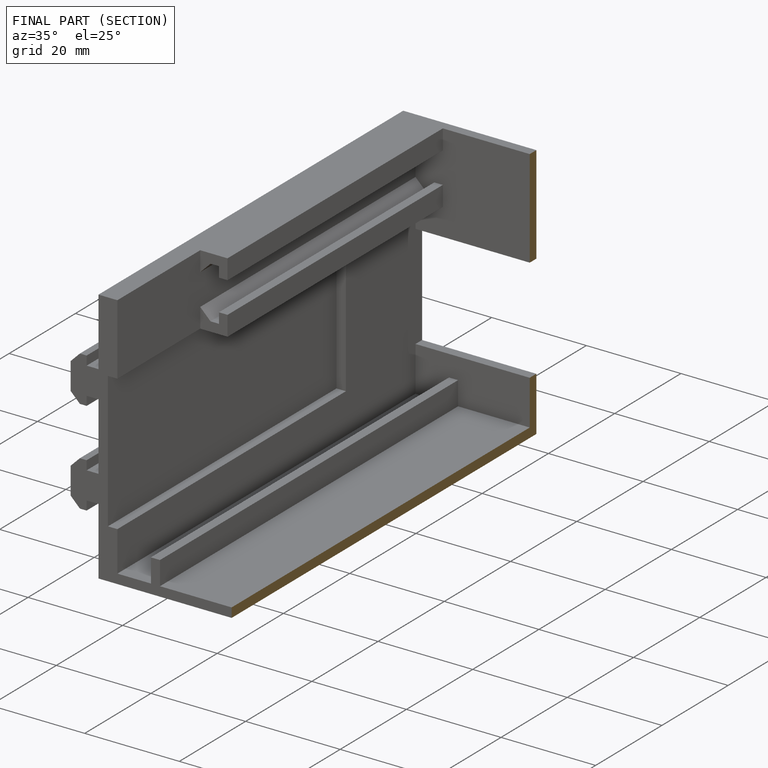
[diagram: finished part — half-section view (interior)]
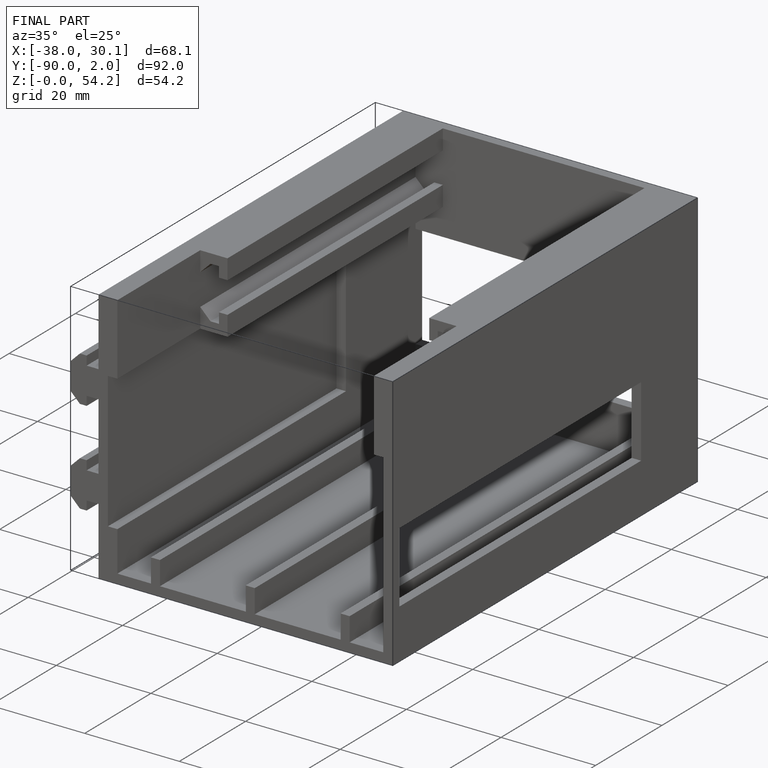
[diagram: finished part — iso view with bounding-box wireframe]
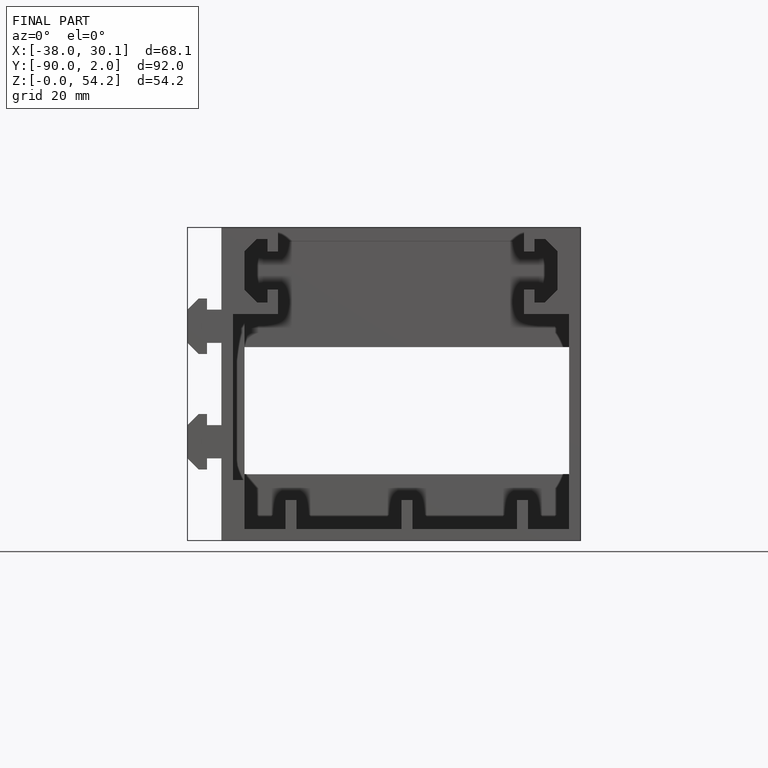
[diagram: finished part — front view with bounding-box wireframe]
